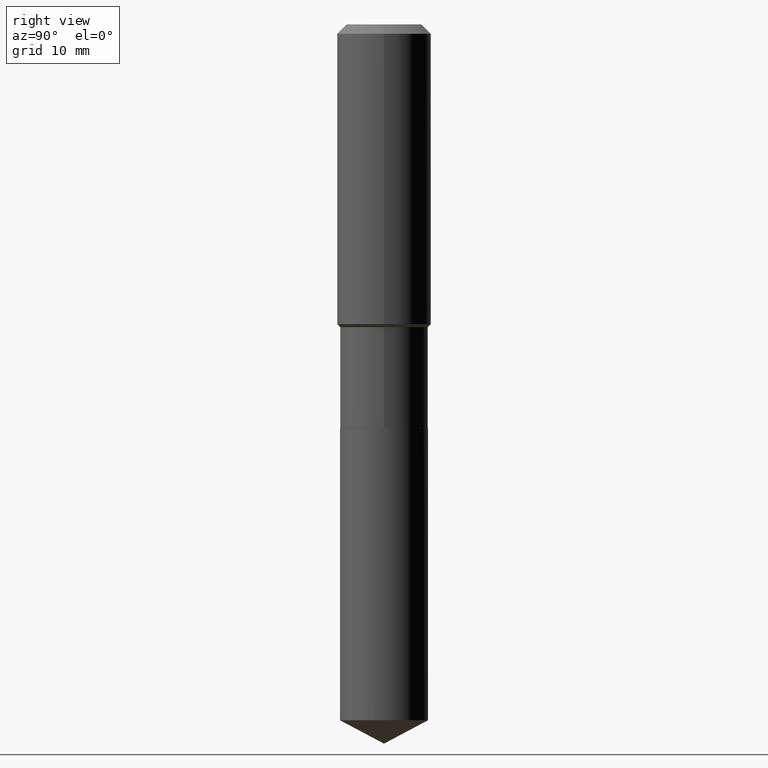
[diagram: clean part render]
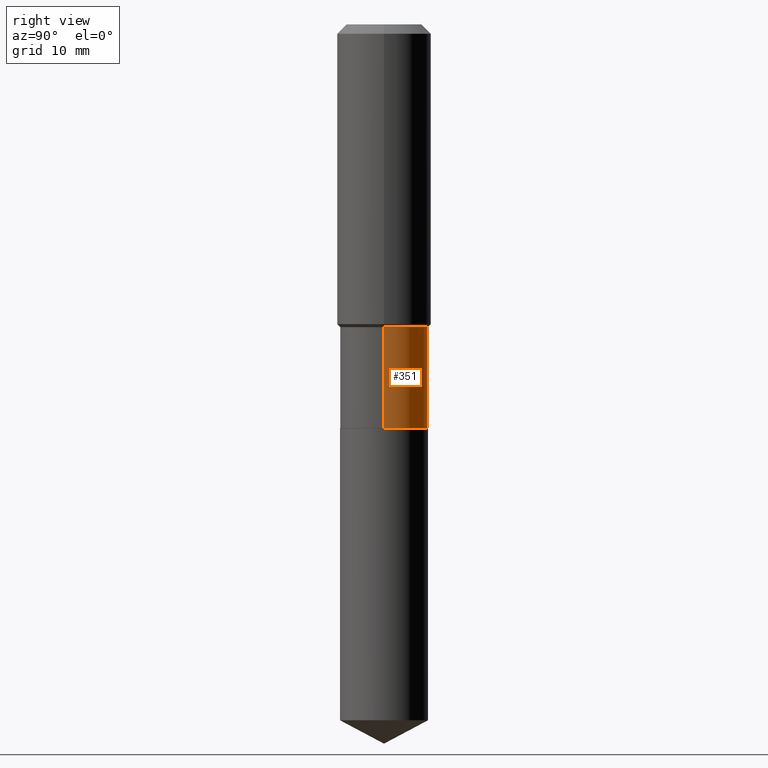
[diagram: same view with one face highlighted and labeled with its STEP entity id]
A machine part, right view. The second image highlights one B-rep face of the part: STEP entity #351.
In plain terms, the highlighted cylindrical surface (partial cylindrical patch) has radius 6.5481 mm, axis along (-0, 0, 1).
Its self-contained STEP definition (entity closure, byte-faithful):
#21 = ORIENTED_EDGE ( 'NONE', *, *, #382, .T. ) ;
#37 = ORIENTED_EDGE ( 'NONE', *, *, #393, .F. ) ;
#51 = AXIS2_PLACEMENT_3D ( 'NONE', #488, #441, #175 ) ;
#67 = VERTEX_POINT ( 'NONE', #234 ) ;
#69 = LINE ( 'NONE', #181, #297 ) ;
#78 = CARTESIAN_POINT ( 'NONE',  ( 0.2577999999999999736, -1.005930688534098151E-14, -2.365500000000000380 ) ) ;
#86 = CARTESIAN_POINT ( 'NONE',  ( -0.2577999999999999181, 1.831779172789537697E-15, -1.268101466267714406E-29 ) ) ;
#88 = CARTESIAN_POINT ( 'NONE',  ( -0.2578000000000000291, -5.393143161678585695E-15, -2.365500000000000380 ) ) ;
#89 = EDGE_CURVE ( 'NONE', #218, #67, #121, .T. ) ;
#113 = CIRCLE ( 'NONE', #313, 0.2577999999999999181 ) ;
#121 = LINE ( 'NONE', #86, #179 ) ;
#139 = FACE_OUTER_BOUND ( 'NONE', #399, .T. ) ;
#142 = AXIS2_PLACEMENT_3D ( 'NONE', #337, #398, #219 ) ;
#175 = DIRECTION ( 'NONE',  ( 1.000000000000000000, -6.982962677686267499E-15, 4.876176775795936353E-29 ) ) ;
#179 = VECTOR ( 'NONE', #232, 39.37007874015748143 ) ;
#181 = CARTESIAN_POINT ( 'NONE',  ( 0.2577999999999999181, -1.800207778307519167E-15, 1.257078372800191925E-29 ) ) ;
#217 = CARTESIAN_POINT ( 'NONE',  ( 4.336060740246867168E-29, -6.190745561902783658E-15, -1.773100000000000565 ) ) ;
#218 = VERTEX_POINT ( 'NONE', #88 ) ;
#219 = DIRECTION ( 'NONE',  ( 1.000000000000000000, -6.982962677686264344E-15, 0.000000000000000000 ) ) ;
#232 = DIRECTION ( 'NONE',  ( -2.445468806185136877E-29, 3.491481338843145188E-15, 1.000000000000000000 ) ) ;
#234 = CARTESIAN_POINT ( 'NONE',  ( -0.2577999999999999181, -5.393143161678585695E-15, -1.773100000000000565 ) ) ;
#256 = DIRECTION ( 'NONE',  ( 1.000000000000000000, -6.982962677686265922E-15, 0.000000000000000000 ) ) ;
#297 = VECTOR ( 'NONE', #370, 39.37007874015748143 ) ;
#313 = AXIS2_PLACEMENT_3D ( 'NONE', #217, #362, #256 ) ;
#337 = CARTESIAN_POINT ( 'NONE',  ( 5.784756461030941795E-29, -8.259099107033462339E-15, -2.365500000000000380 ) ) ;
#351 = ADVANCED_FACE ( 'NONE', ( #139 ), #476, .T. ) ;
#362 = DIRECTION ( 'NONE',  ( -2.445468806185136597E-29, 3.491481338843145583E-15, 1.000000000000000000 ) ) ;
#370 = DIRECTION ( 'NONE',  ( -2.445468806185136877E-29, 3.491481338843145188E-15, 1.000000000000000000 ) ) ;
#375 = EDGE_CURVE ( 'NONE', #443, #67, #113, .T. ) ;
#382 = EDGE_CURVE ( 'NONE', #477, #218, #395, .T. ) ;
#387 = ORIENTED_EDGE ( 'NONE', *, *, #89, .T. ) ;
#393 = EDGE_CURVE ( 'NONE', #477, #443, #69, .T. ) ;
#395 = CIRCLE ( 'NONE', #142, 0.2577999999999999736 ) ;
#398 = DIRECTION ( 'NONE',  ( -2.445468806185136597E-29, 3.491481338843145583E-15, 1.000000000000000000 ) ) ;
#399 = EDGE_LOOP ( 'NONE', ( #21, #387, #487, #37 ) ) ;
#439 = CARTESIAN_POINT ( 'NONE',  ( 0.2577999999999999181, -7.990953340210302036E-15, -1.773100000000000565 ) ) ;
#441 = DIRECTION ( 'NONE',  ( -2.445468806185136597E-29, 3.491481338843145583E-15, 1.000000000000000000 ) ) ;
#443 = VERTEX_POINT ( 'NONE', #439 ) ;
#476 = CYLINDRICAL_SURFACE ( 'NONE', #51, 0.2577999999999999181 ) ;
#477 = VERTEX_POINT ( 'NONE', #78 ) ;
#487 = ORIENTED_EDGE ( 'NONE', *, *, #375, .F. ) ;
#488 = CARTESIAN_POINT ( 'NONE',  ( 0.000000000000000000, 0.000000000000000000, 0.000000000000000000 ) ) ;